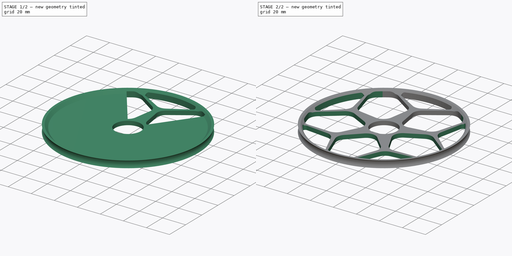
[diagram: build sequence overview — one tinted view per stage of 2, left to right]
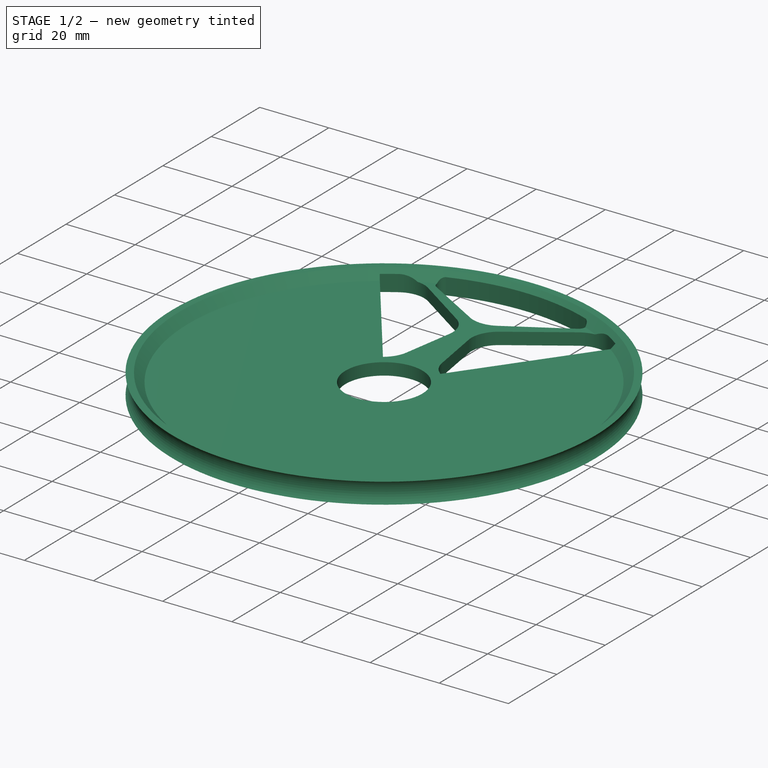
[diagram: stage 1 of 2 — iso view after this stage's code; geometry added in this stage tinted green]
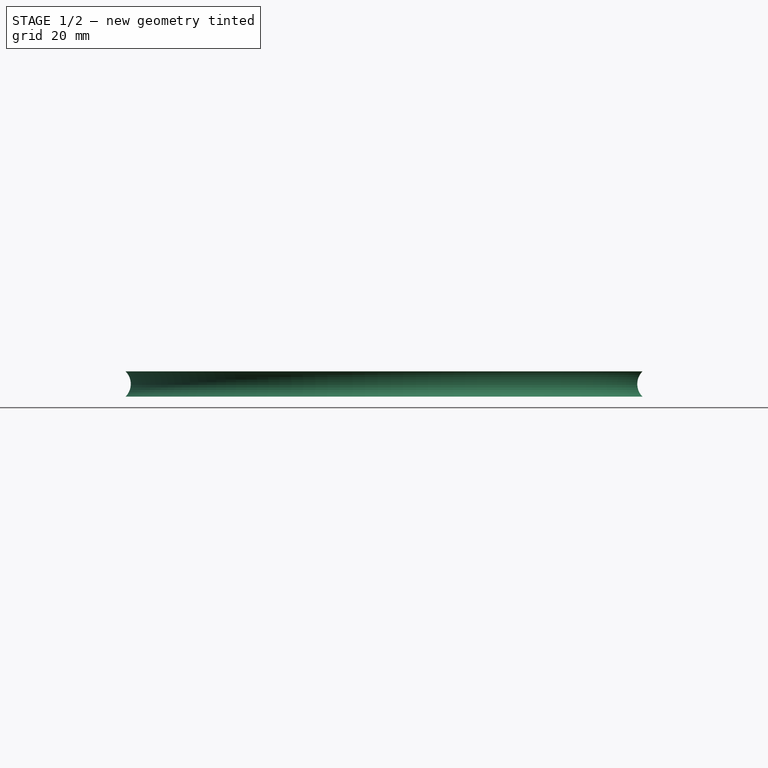
[diagram: stage 1 of 2 — front view after this stage's code; geometry added in this stage tinted green]
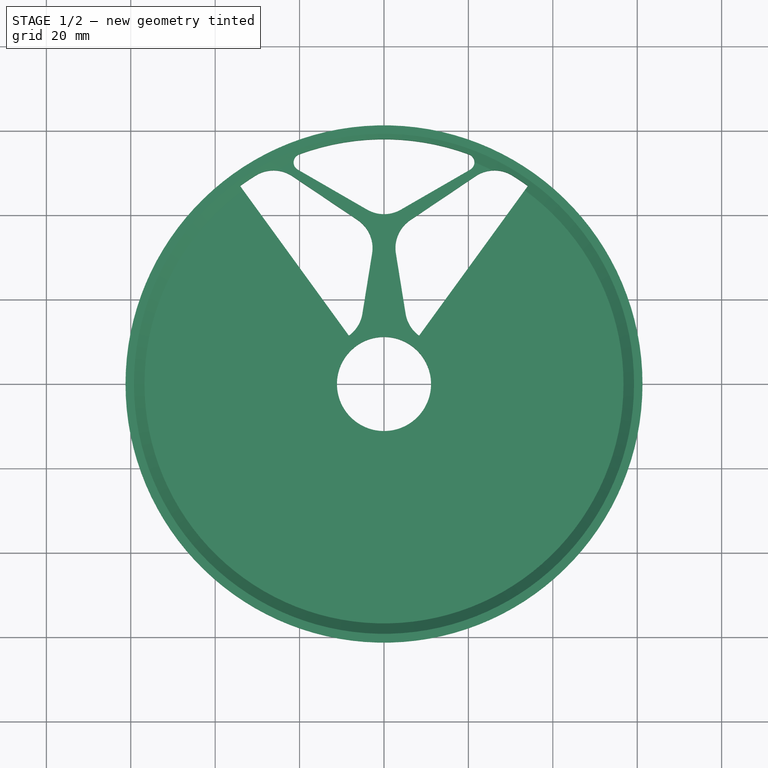
[diagram: stage 1 of 2 — top view after this stage's code; geometry added in this stage tinted green]
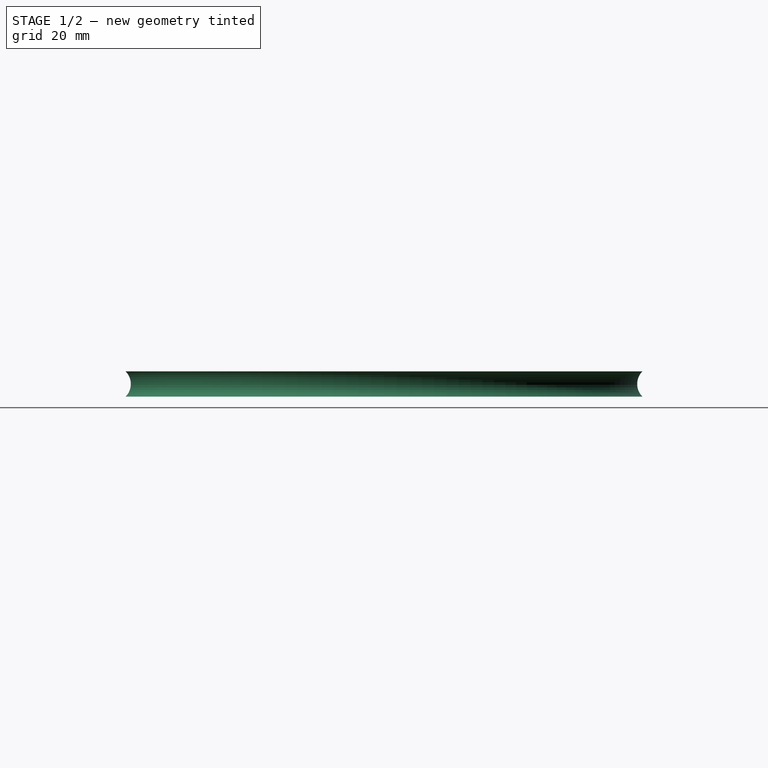
[diagram: stage 1 of 2 — right view after this stage's code; geometry added in this stage tinted green]
FCSTD DOCUMENT  (FreeCAD 0.20R29177 +426 (Git))
Label: CablePulley
License: All rights reserved
LicenseURL: http://en.wikipedia.org/wiki/All_rights_reserved
objects: App::DocumentObjectGroup×3, Sketcher::SketchObject×3, PartDesign::CoordinateSystem×1, App::FeaturePython×1, PartDesign::Revolution×1, PartDesign::Pocket×1, PartDesign::PolarPattern×1, PartDesign::Body×1, App::Part×1
note: 10 computed .brp shape members not serialized (recipe doc carries the construction recipe); baked Part::Feature solids carry a one-line shape summary decoded from their .brp
EXTERNAL_REF file=Params.FCStd obj=Spreadsheet

FEATURE [App::DocumentObjectGroup] Parts
FEATURE [PartDesign::CoordinateSystem] LCS_Origin
  AttacherType = Attacher::AttachEngine3D
  MapMode = 2
  Support = -> [X_Axis]
FEATURE [App::FeaturePython] Variables  # WARN: FeaturePython — macro-defined, semantics opaque (R4)
  InnerDiameter = 22.3
  NumSpokes = 5
  OuterDiameter = 120
  Type = App::PropertyContainer
  expr: OuterDiameter = <<Params>>#<<Params>>.CablePulleyDiameter
FEATURE [App::DocumentObjectGroup] Constraints
FEATURE [App::DocumentObjectGroup] Configurations
FEATURE [Sketcher::SketchObject] Sketch
  FullyConstrained = true
  MapMode = 5
  Support = -> [XY_Plane001]
  expr: Constraints[2] = <<Variables>>.OuterDiameter
  expr: Constraints[3] = <<Variables>>.InnerDiameter
  sketch-geometry (2):
    g0: Circle CenterX=0 CenterY=0 CenterZ=0 NormalX=0 NormalY=0 NormalZ=1 AngleXU=0 Radius=11.15
    g1: Circle CenterX=0 CenterY=0 CenterZ=0 NormalX=0 NormalY=0 NormalZ=1 AngleXU=0 Radius=60
  constraints (4):
    c: Coincident(g0,g-1)
    c: Coincident(g1,g0)
    c: Diameter(g1) = 120
    c: Diameter(g0) = 22.3
FEATURE [Sketcher::SketchObject] Sketch001
  FullyConstrained = true
  MapMode = 5
  Support = -> [XY_Plane001]
  expr: Constraints[16] = <<Variables>>.InnerDiameter + 6
  expr: Constraints[38] = 180 / <<Variables>>.NumSpokes
  expr: Constraints[4] = <<Variables>>.OuterDiameter / 2 - 2
  sketch-geometry (37):
    g0: LineSegment StartX=-5.12151 StartY=16.6459 StartZ=0 EndX=-2.81551 EndY=30.9437 EndZ=0
    g1: LineSegment StartX=-8.31716 StartY=11.4476 StartZ=0 EndX=-34.0915 EndY=46.923 EndZ=0
    g2: LineSegment StartX=-6.25073 StartY=38.8571 StartZ=0 EndX=-21.7057 EndY=49.2449 EndZ=0
    g3: LineSegment StartX=-20.4235 StartY=50.7915 StartZ=0 EndX=-4 EndY=41.3094 EndZ=0
    g4: LineSegment StartX=4 StartY=41.3094 StartZ=0 EndX=20.4235 EndY=50.7915 EndZ=0
    g5: LineSegment StartX=5.12151 StartY=16.6459 StartZ=0 EndX=2.81551 EndY=30.9437 EndZ=0
    g6: LineSegment StartX=6.25073 StartY=38.8571 StartZ=0 EndX=21.7057 EndY=49.2449 EndZ=0
    g7: LineSegment StartX=8.31716 StartY=11.4476 StartZ=0 EndX=34.0915 EndY=46.923 EndZ=0
    g8: ArcOfCircle CenterX=0 CenterY=0 CenterZ=0 NormalX=0 NormalY=0 NormalZ=1 AngleXU=0 Radius=58 StartAngle=0.942478 EndAngle=1.02
    g9: ArcOfCircle CenterX=0 CenterY=0 CenterZ=0 NormalX=0 NormalY=0 NormalZ=1 AngleXU=0 Radius=58 StartAngle=2.1216 EndAngle=2.19911
    g10: ArcOfCircle CenterX=0 CenterY=0 CenterZ=0 NormalX=0 NormalY=0 NormalZ=1 AngleXU=0 Radius=58 StartAngle=1.21659 EndAngle=1.92501
    g11: LineSegment StartX=-2 StartY=36 StartZ=0 EndX=2 EndY=36 EndZ=0
    g12: GeomPoint X=0 Y=36 Z=0
    g13: LineSegment StartX=-6.38814 StartY=8.79251 StartZ=0 EndX=6.38814 EndY=8.79251 EndZ=0
    g14: Circle CenterX=0 CenterY=0 CenterZ=0 NormalX=0 NormalY=0 NormalZ=1 AngleXU=0 Radius=14.15
    g15: ArcOfCircle CenterX=13.0194 CenterY=17.9197 CenterZ=0 NormalX=0 NormalY=0 NormalZ=1 AngleXU=0 Radius=8 StartAngle=3.3015 EndAngle=4.08407
    g16: GeomPoint X=6.38814 Y=8.79251 Z=0
    g17: ArcOfCircle CenterX=-13.0194 CenterY=17.9197 CenterZ=0 NormalX=0 NormalY=0 NormalZ=1 AngleXU=0 Radius=8 StartAngle=5.34071 EndAngle=6.12328
    g18: GeomPoint X=-6.38814 Y=8.79251 Z=0
    g19: LineSegment StartX=8.31716 StartY=11.4476 StartZ=0 EndX=0 EndY=17.4904 EndZ=0
    g20: LineSegment StartX=-8.31716 StartY=11.4476 StartZ=0 EndX=0 EndY=17.4904 EndZ=0
    g21: ArcOfCircle CenterX=10.7134 CenterY=32.2175 CenterZ=0 NormalX=0 NormalY=0 NormalZ=1 AngleXU=0 Radius=8 StartAngle=2.16258 EndAngle=3.3015
    g22: GeomPoint X=2 Y=36 Z=0
    g23: ArcOfCircle CenterX=6e-15 CenterY=48.2376 CenterZ=0 NormalX=0 NormalY=0 NormalZ=1 AngleXU=0 Radius=8 StartAngle=4.18879 EndAngle=5.23599
    g24: GeomPoint X=0 Y=39 Z=0
    g25: ArcOfCircle CenterX=-10.7134 CenterY=32.2175 CenterZ=0 NormalX=0 NormalY=0 NormalZ=1 AngleXU=0 Radius=8 StartAngle=6.12328 EndAngle=7.2622
    g26: GeomPoint X=-2 Y=36 Z=0
    g27: ArcOfCircle CenterX=26.1684 CenterY=42.6053 CenterZ=0 NormalX=0 NormalY=0 NormalZ=1 AngleXU=0 Radius=8 StartAngle=1.02 EndAngle=2.16258
    g28: ArcOfCircle CenterX=19.4235 CenterY=52.5236 CenterZ=0 NormalX=0 NormalY=0 NormalZ=1 AngleXU=0 Radius=2 StartAngle=5.23599 EndAngle=7.49977
    g29: ArcOfCircle CenterX=-19.4235 CenterY=52.5236 CenterZ=0 NormalX=0 NormalY=0 NormalZ=1 AngleXU=0 Radius=2 StartAngle=1.92501 EndAngle=4.18879
    g30: ArcOfCircle CenterX=-26.1684 CenterY=42.6053 CenterZ=0 NormalX=0 NormalY=0 NormalZ=1 AngleXU=0 Radius=8 StartAngle=0.979016 EndAngle=2.1216
    g31: LineSegment StartX=4.87131 StartY=39.9125 StartZ=0 EndX=24.88 EndY=52.3926 EndZ=0
    g32: LineSegment StartX=20.4235 StartY=50.7915 StartZ=0 EndX=20.9528 EndY=49.943 EndZ=0
    g33: ArcOfCircle CenterX=0 CenterY=0 CenterZ=0 NormalX=0 NormalY=0 NormalZ=1 AngleXU=0 Radius=58 StartAngle=1.02 EndAngle=1.21659
    g34: LineSegment StartX=4.87131 StartY=39.9125 StartZ=0 EndX=4 EndY=41.3094 EndZ=0
    g35: LineSegment StartX=4.87131 StartY=39.9125 StartZ=0 EndX=5.74262 EndY=38.5156 EndZ=0
    g36: LineSegment StartX=20.9528 StartY=49.943 StartZ=0 EndX=21.482 EndY=49.0946 EndZ=0
  constraints (90):
    c: PointOnObject(g24,g-2)
    c: Coincident(g8,g7)
    c: Coincident(g9,g1)
    c: Equal(g10,g9)
    c: Radius(g10) = 58
    c: Coincident(g11,g26)
    c: Coincident(g11,g22)
    c: Horizontal(g11)
    c: Symmetric(g26,g22,g12)
    c: PointOnObject(g12,g-2)
    c: Horizontal(g13)
    c: DistanceY(g12,g24) = 3
    c: DistanceX(g11,g11) = 4
    c: Coincident(g16,g13)
    c: Coincident(g18,g13)
    c: Coincident(g14,g8)
    c: Diameter(g14) = 28.3
    c: PointOnObject(g8,g1)
    c: PointOnObject(g8,g7)
    c: Coincident(g8,g9)
    c: Coincident(g8,g10)
    c: Coincident(g8,g-1)
    c: PointOnObject(g16,g7)
    c: PointOnObject(g16,g5)
    c: Tangent(g5,g15) = 1.5708
    c: PointOnObject(g18,g0)
    c: PointOnObject(g18,g1)
    c: Tangent(g0,g17) = -1.5708
    c: Equal(g15,g17)
    c: Radius(g15) = 8
    c: PointOnObject(g19,g-2)
    c: Tangent(g19,g15) = 1.5708
    c: Coincident(g15,g7)
    c: Perpendicular(g7,g19)
    c: Coincident(g20,g19)
    c: Tangent(g20,g17) = -1.5708
    c: Coincident(g1,g17)
    c: Perpendicular(g20,g1)
    c: Angle(g7,g-2) = 0.628319
    c: PointOnObject(g7,g14)
    c: PointOnObject(g22,g5)
    c: PointOnObject(g22,g6)
    c: Tangent(g5,g21) = 1.5708
    c: Tangent(g6,g21) = 1.5708
    c: PointOnObject(g24,g4)
    c: PointOnObject(g24,g3)
    c: Tangent(g4,g23) = -1.5708
    c: Tangent(g3,g23) = -1.5708
    c: PointOnObject(g26,g0)
    c: PointOnObject(g26,g2)
    c: Tangent(g0,g25) = -1.5708
    c: Tangent(g2,g25) = -1.5708
    c: Equal(g21,g25)
    c: Equal(g25,g23)
    c: Radius(g23) = 8
    c: Equal(g4,g3)
    c: Equal(g6,g2)
    c: Tangent(g6,g27) = 1.5708
    c: Tangent(g8,g27) = -1.5708
    c: Tangent(g4,g28) = -1.5708
    c: Tangent(g10,g28) = -1.5708
    c: Tangent(g3,g29) = -1.5708
    c: Tangent(g10,g29) = -1.5708
    c: Tangent(g2,g30) = -1.5708
    c: Tangent(g9,g30) = -1.5708
    c: Radius(g28) = 2
    c: Coincident(g32,g4)
    c: PointOnObject(g32,g31)
    c: Coincident(g33,g8)
    c: Coincident(g33,g8)
    c: Coincident(g33,g10)
    c: PointOnObject(g31,g33)
    c: Coincident(g34,g31)
    c: Coincident(g34,g4)
    c: Coincident(g35,g31)
    c: PointOnObject(g35,g6)
    c: Parallel(g35,g34)
    c: Equal(g35,g34)
    c: Perpendicular(g34,g31)
    c: Coincident(g36,g32)
    c: PointOnObject(g36,g6)
    c: Parallel(g36,g32)
    c: Perpendicular(g31,g32)
    c: Equal(g36,g32)
    c: Distance(g36,g4) = 2
    c: Angle(g4,g3) = 2.0944
    c: Equal(g27,g30)
    c: Radius(g27) = 8
    c: Equal(g28,g29)
    c: DistanceY(g8,g12) = 36
FEATURE [Sketcher::SketchObject] Sketch002
  FullyConstrained = true
  MapMode = 5
  Placement = pos=(0,0,0) rot=(1,0,0;1.5708rad)
  Support = -> [XZ_Plane001]
  expr: Constraints[5] = <<Params>>#<<Params>>.CablePulleyDiameter / 2
  expr: Constraints[6] = <<Variables>>.InnerDiameter / 2
  sketch-geometry (11):
    g0: LineSegment StartX=-11.15 StartY=0 StartZ=0 EndX=-11.15 EndY=3.5 EndZ=0
    g1: LineSegment StartX=-11.15 StartY=0 StartZ=0 EndX=-61.2426 EndY=0 EndZ=0
    g2: ArcOfCircle CenterX=-64.2426 CenterY=3 CenterZ=0 NormalX=0 NormalY=0 NormalZ=1 AngleXU=0 Radius=4.24264 StartAngle=5.49779 EndAngle=7.06858
    g3: GeomPoint X=-11.15 Y=1.75 Z=0
    g4: GeomPoint X=-60 Y=2.99999 Z=0
    g5: LineSegment StartX=-60 StartY=2.99999 StartZ=0 EndX=-60 EndY=0 EndZ=0
    g6: LineSegment StartX=-61.2426 StartY=6 StartZ=0 EndX=-61.2426 EndY=0 EndZ=0
    g7: LineSegment StartX=-61.2426 StartY=6 StartZ=0 EndX=-59.2426 EndY=6 EndZ=0
    g8: LineSegment StartX=-59.2426 StartY=6 StartZ=0 EndX=-56.7426 EndY=3.5 EndZ=0
    g9: LineSegment StartX=-56.7426 StartY=3.5 StartZ=0 EndX=-11.15 EndY=3.5 EndZ=0
    g10: LineSegment StartX=-61.2426 StartY=6 StartZ=0 EndX=-55.2426 EndY=0 EndZ=0
  constraints (29):
    c: Vertical(g0)
    c: Coincident(g1,g0)
    c: Horizontal(g1)
    c: Coincident(g2,g1)
    c: Symmetric(g0,g0,g3)
    c: DistanceX(g4,g-1) = 60
    c: DistanceX(g3,g-1) = 11.15
    c: PointOnObject(g4,g2)
    c: Coincident(g5,g4)
    c: Vertical(g5)
    c: Tangent(g5,g2)
    c: PointOnObject(g5,g-1)
    c: PointOnObject(g1,g-1)
    c: Coincident(g6,g1)
    c: Vertical(g6)
    c: DistanceY(g6,g6) = 6
    c: Coincident(g2,g6)
    c: Coincident(g7,g2)
    c: Horizontal(g7)
    c: DistanceX(g7,g7) = 2
    c: Coincident(g8,g7)
    c: Coincident(g9,g8)
    c: Coincident(g9,g0)
    c: Horizontal(g9)
    c: Angle(g-1,g8) = 2.35619
    c: PointOnObject(g10,g1)
    c: Tangent(g10,g2) = 1.5708
    c: Angle(g6,g10) = 0.785398
    c: DistanceY(g0,g0) = 3.5
FEATURE [PartDesign::Revolution] Revolution  label="Groove"
  Angle = 360
  Axis = (0,-2e-16,1)
  Base = (0,0,0)
  Placement = pos=(0,0,0) rot=(1,0,0;1.5708rad)
  Profile = -> Sketch002
  ReferenceAxis = -> Sketch002 [V_Axis]
FEATURE [PartDesign::Pocket] Pocket  label="Spoke"
  BaseFeature = -> Revolution
  Direction = (0,0,-1)
  Length = 5
  Length2 = 5
  Midplane = true
  Placement = pos=(0,0,0) rot=(1,0,0;1.5708rad)
  Profile = -> Sketch001
  ReferenceAxis = -> Sketch001 [N_Axis]
  Type = 1
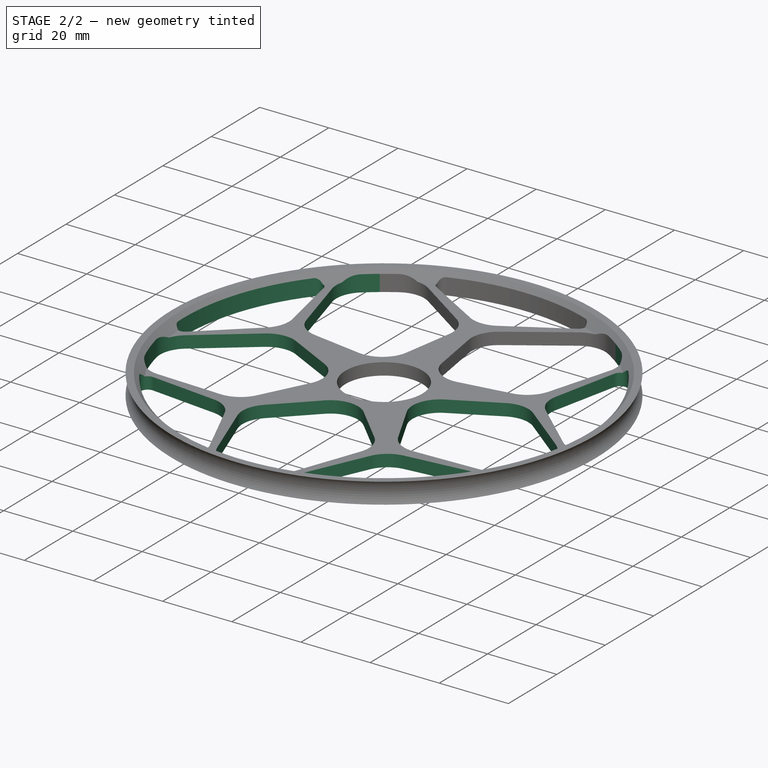
[diagram: stage 2 of 2 — iso view after this stage's code; geometry added in this stage tinted green]
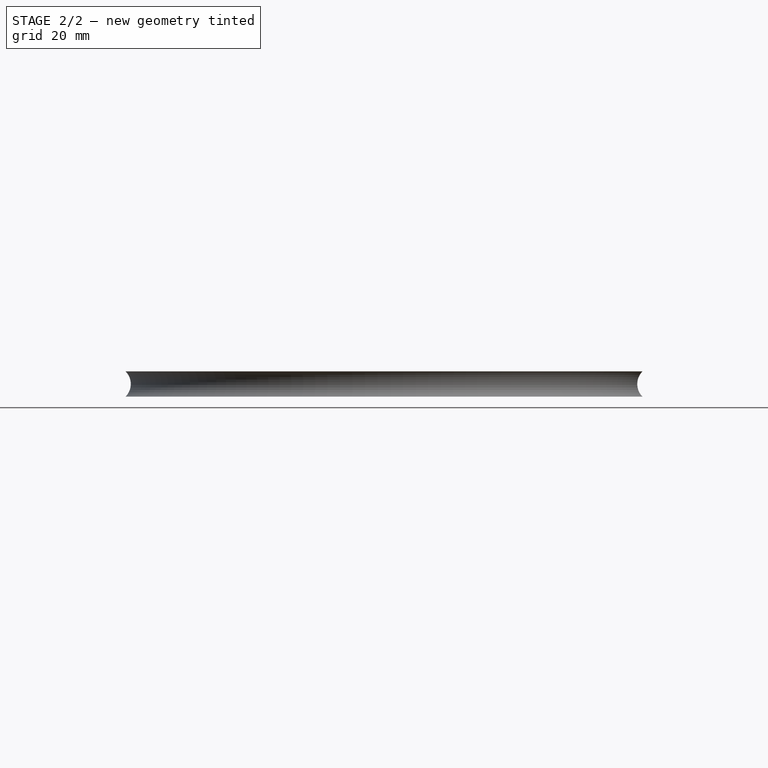
[diagram: stage 2 of 2 — front view after this stage's code; geometry added in this stage tinted green]
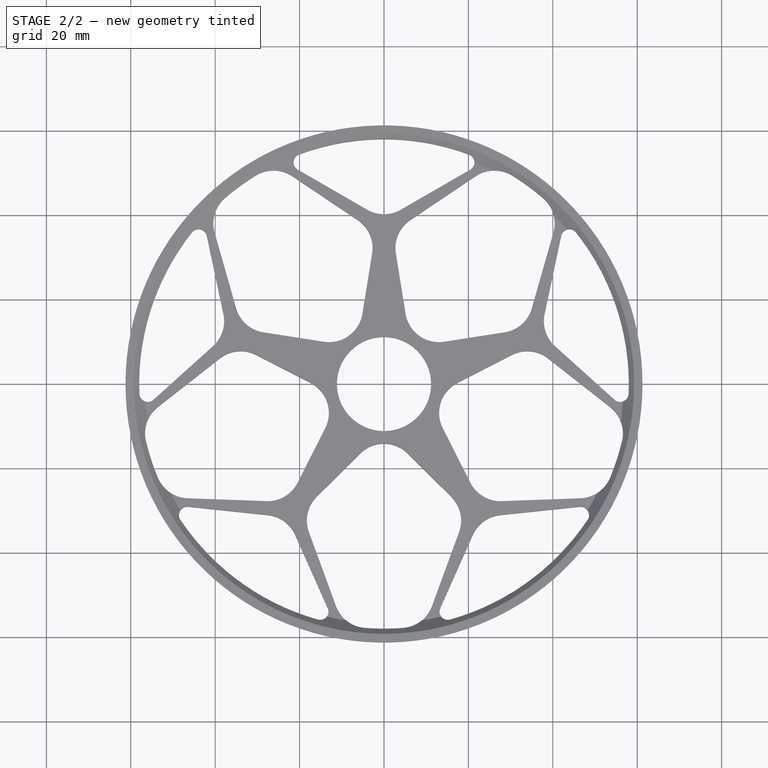
[diagram: stage 2 of 2 — top view after this stage's code; geometry added in this stage tinted green]
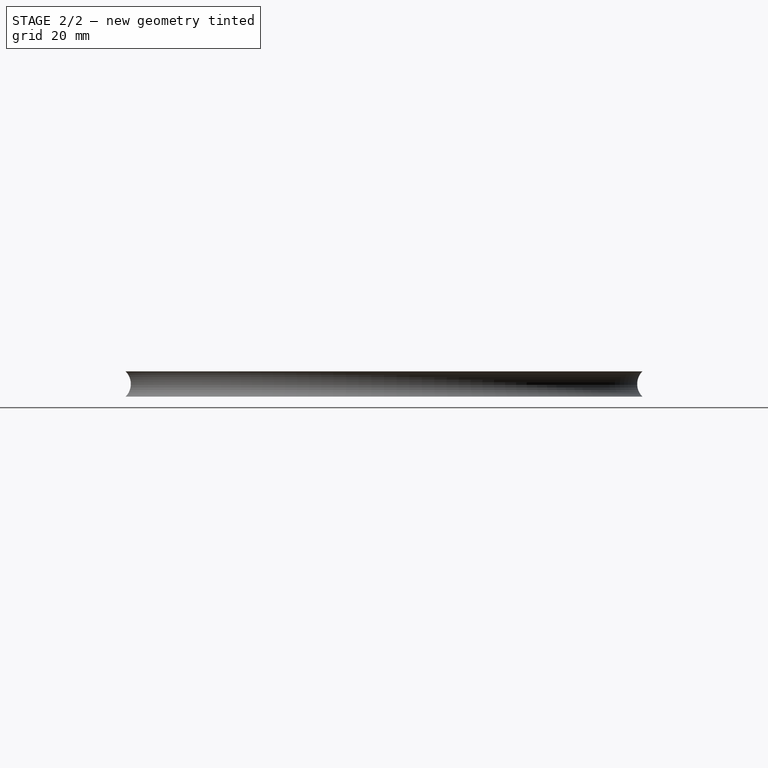
[diagram: stage 2 of 2 — right view after this stage's code; geometry added in this stage tinted green]
FEATURE [PartDesign::PolarPattern] PolarPattern
  Angle = 360
  Axis = -> Sketch001 [N_Axis]
  BaseFeature = -> Pocket
  Occurrences = 5
  Originals = -> [Pocket]
  Placement = pos=(0,0,0) rot=(1,0,0;1.5708rad)
  expr: Occurrences = <<Variables>>.NumSpokes
FEATURE [PartDesign::Body] Body
  Group = -> [Sketch,Revolution,Sketch001,Pocket,PolarPattern,Sketch002]
  Origin = -> Origin001
  Tip = -> PolarPattern
FEATURE [App::Part] Assembly
  AssemblyType = Part::Link
  Group = -> [LCS_Origin,Variables,Constraints,Configurations,Body]
  Origin = -> Origin
  Type = Assembly
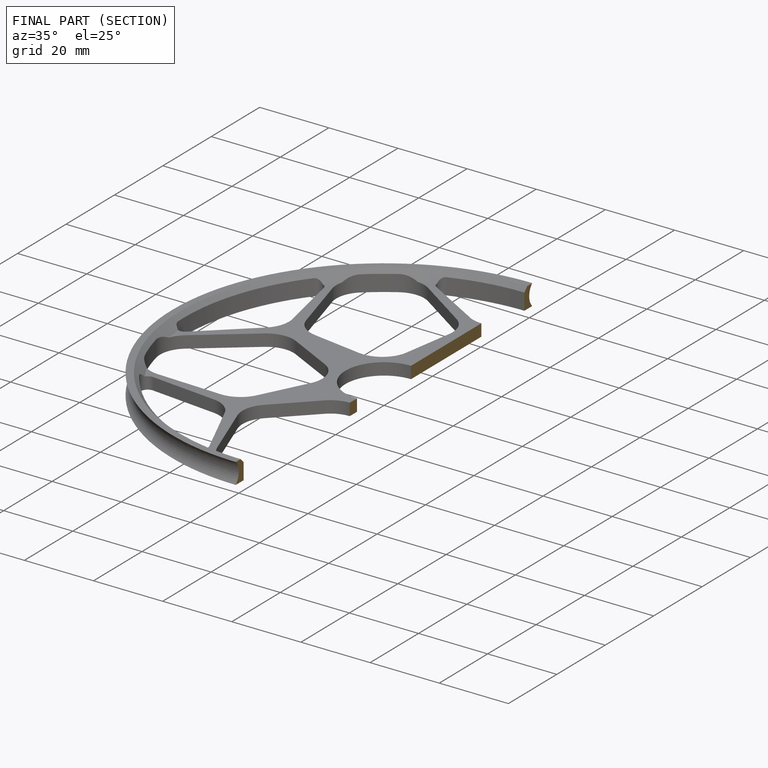
[diagram: finished part — half-section view (interior)]
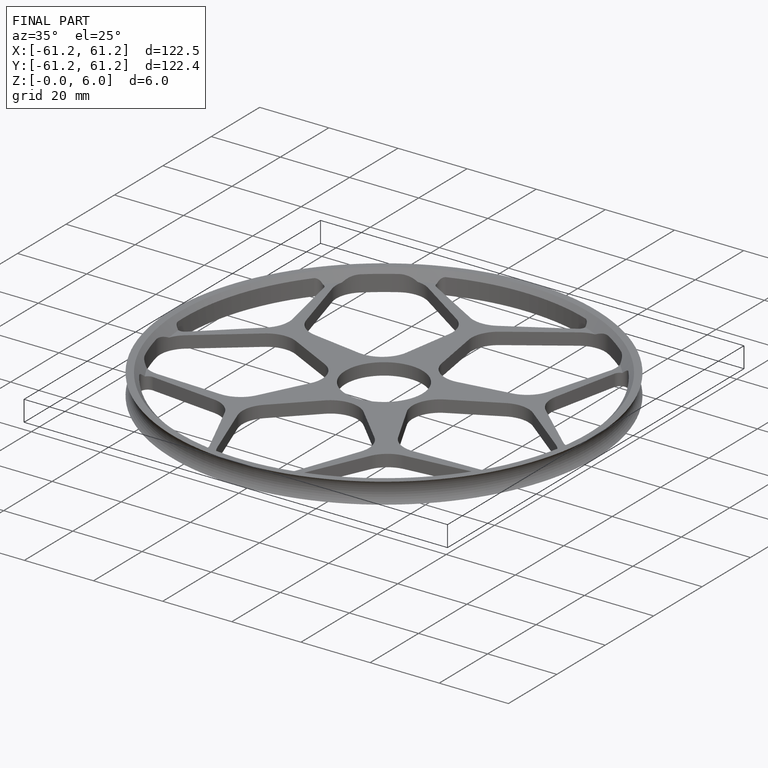
[diagram: finished part — iso view with bounding-box wireframe]
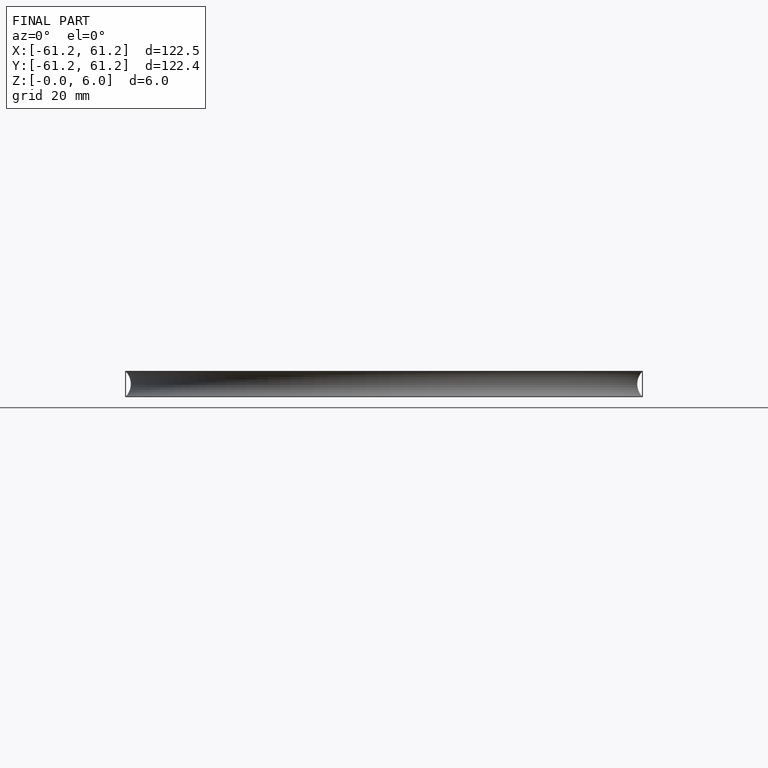
[diagram: finished part — front view with bounding-box wireframe]
